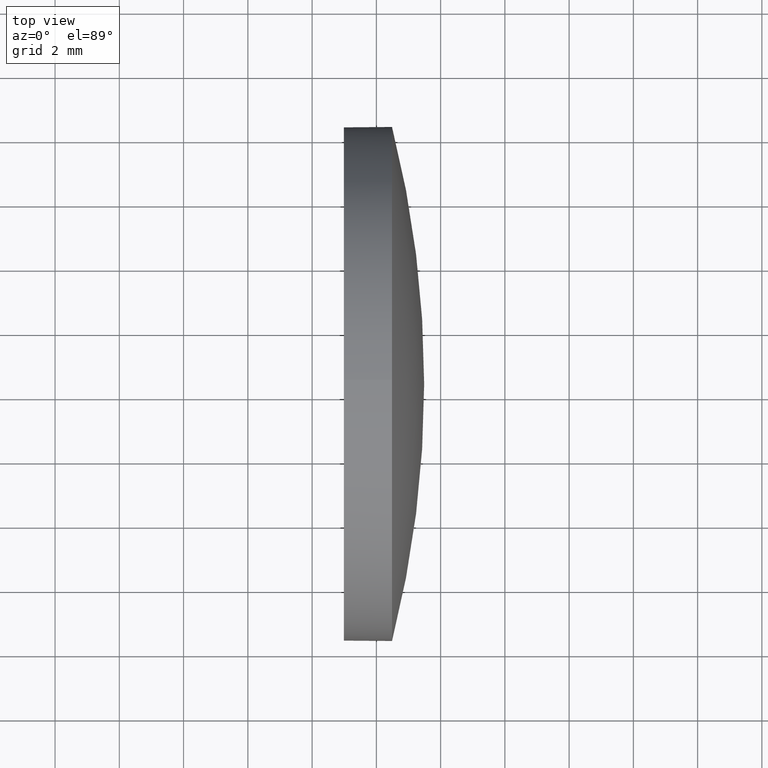
[diagram: clean part render]
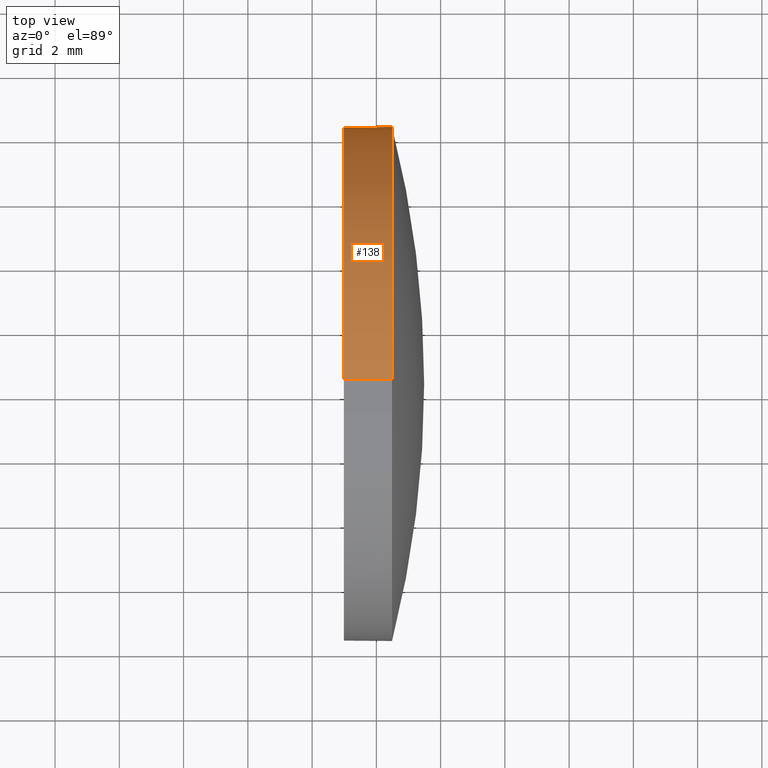
[diagram: same view with one face highlighted and labeled with its STEP entity id]
A machine part, top view. The second image highlights one B-rep face of the part: STEP entity #138.
In plain terms, the highlighted cylindrical surface (partial cylindrical patch) has radius 8 mm, axis along (-1, -0, -0).
Its self-contained STEP definition (entity closure, byte-faithful):
#1 = CARTESIAN_POINT ( 'NONE',  ( 646.4878629679331000, 90.34373980560192800, -8.000000000000007100 ) ) ;
#4 = CARTESIAN_POINT ( 'NONE',  ( 646.4878629679331000, 90.34373980560192800, 0.0000000000000000000 ) ) ;
#6 = DIRECTION ( 'NONE',  ( 0.0000000000000000000, 0.0000000000000000000, 1.000000000000000000 ) ) ;
#14 = VERTEX_POINT ( 'NONE', #147 ) ;
#16 = ORIENTED_EDGE ( 'NONE', *, *, #30, .F. ) ;
#17 = CARTESIAN_POINT ( 'NONE',  ( 646.4878629679331000, 90.34373980560192800, 8.000000000000007100 ) ) ;
#20 = ORIENTED_EDGE ( 'NONE', *, *, #43, .T. ) ;
#22 = VECTOR ( 'NONE', #165, 1000.000000000000000 ) ;
#25 = DIRECTION ( 'NONE',  ( 0.0000000000000000000, 0.0000000000000000000, 1.000000000000000000 ) ) ;
#30 = EDGE_CURVE ( 'NONE', #14, #65, #144, .T. ) ;
#33 = VERTEX_POINT ( 'NONE', #1 ) ;
#36 = LINE ( 'NONE', #78, #22 ) ;
#43 = EDGE_CURVE ( 'NONE', #33, #65, #119, .T. ) ;
#50 = AXIS2_PLACEMENT_3D ( 'NONE', #4, #176, #25 ) ;
#52 = VECTOR ( 'NONE', #75, 1000.000000000000000 ) ;
#53 = AXIS2_PLACEMENT_3D ( 'NONE', #158, #186, #54 ) ;
#54 = DIRECTION ( 'NONE',  ( 0.0000000000000000000, 0.0000000000000000000, 1.000000000000000000 ) ) ;
#59 = AXIS2_PLACEMENT_3D ( 'NONE', #146, #118, #6 ) ;
#60 = CARTESIAN_POINT ( 'NONE',  ( 646.4878629679331000, 90.34373980560192800, 0.0000000000000000000 ) ) ;
#65 = VERTEX_POINT ( 'NONE', #90 ) ;
#68 = CYLINDRICAL_SURFACE ( 'NONE', #59, 8.000000000000007100 ) ;
#70 = EDGE_LOOP ( 'NONE', ( #114, #20, #16, #143, #137 ) ) ;
#75 = DIRECTION ( 'NONE',  ( -1.000000000000000000, -0.0000000000000000000, -0.0000000000000000000 ) ) ;
#78 = CARTESIAN_POINT ( 'NONE',  ( 643.3398904949416400, 90.34373980560192800, 8.000000000000007100 ) ) ;
#82 = AXIS2_PLACEMENT_3D ( 'NONE', #60, #96, #151 ) ;
#90 = CARTESIAN_POINT ( 'NONE',  ( 644.9878629679331000, 90.34373980560192800, -8.000000000000007100 ) ) ;
#94 = FACE_OUTER_BOUND ( 'NONE', #70, .T. ) ;
#96 = DIRECTION ( 'NONE',  ( -1.000000000000000000, -0.0000000000000000000, -0.0000000000000000000 ) ) ;
#99 = VERTEX_POINT ( 'NONE', #17 ) ;
#104 = EDGE_CURVE ( 'NONE', #99, #130, #127, .T. ) ;
#111 = CIRCLE ( 'NONE', #50, 8.000000000000007100 ) ;
#114 = ORIENTED_EDGE ( 'NONE', *, *, #164, .T. ) ;
#118 = DIRECTION ( 'NONE',  ( -1.000000000000000000, -0.0000000000000000000, -0.0000000000000000000 ) ) ;
#119 = LINE ( 'NONE', #172, #52 ) ;
#127 = CIRCLE ( 'NONE', #82, 8.000000000000007100 ) ;
#130 = VERTEX_POINT ( 'NONE', #163 ) ;
#137 = ORIENTED_EDGE ( 'NONE', *, *, #104, .T. ) ;
#138 = ADVANCED_FACE ( 'NONE', ( #94 ), #68, .T. ) ;
#143 = ORIENTED_EDGE ( 'NONE', *, *, #168, .F. ) ;
#144 = CIRCLE ( 'NONE', #53, 8.000000000000007100 ) ;
#146 = CARTESIAN_POINT ( 'NONE',  ( 643.3398904949416400, 90.34373980560192800, 0.0000000000000000000 ) ) ;
#147 = CARTESIAN_POINT ( 'NONE',  ( 644.9878629679331000, 90.34373980560192800, 8.000000000000007100 ) ) ;
#151 = DIRECTION ( 'NONE',  ( 0.0000000000000000000, 0.0000000000000000000, 1.000000000000000000 ) ) ;
#158 = CARTESIAN_POINT ( 'NONE',  ( 644.9878629679331000, 90.34373980560192800, 0.0000000000000000000 ) ) ;
#163 = CARTESIAN_POINT ( 'NONE',  ( 646.4878629679331000, 98.34373980560194200, 9.797174393178831600E-016 ) ) ;
#164 = EDGE_CURVE ( 'NONE', #130, #33, #111, .T. ) ;
#165 = DIRECTION ( 'NONE',  ( -1.000000000000000000, -0.0000000000000000000, -0.0000000000000000000 ) ) ;
#168 = EDGE_CURVE ( 'NONE', #99, #14, #36, .T. ) ;
#172 = CARTESIAN_POINT ( 'NONE',  ( 643.3398904949416400, 90.34373980560192800, -8.000000000000007100 ) ) ;
#176 = DIRECTION ( 'NONE',  ( -1.000000000000000000, -0.0000000000000000000, -0.0000000000000000000 ) ) ;
#186 = DIRECTION ( 'NONE',  ( -1.000000000000000000, -0.0000000000000000000, -0.0000000000000000000 ) ) ;